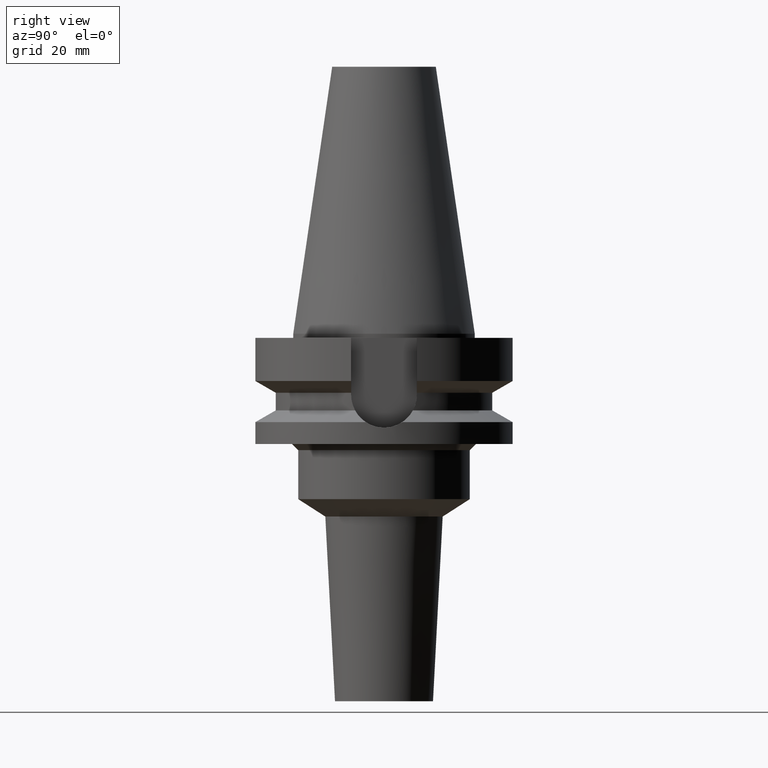
[diagram: clean part render]
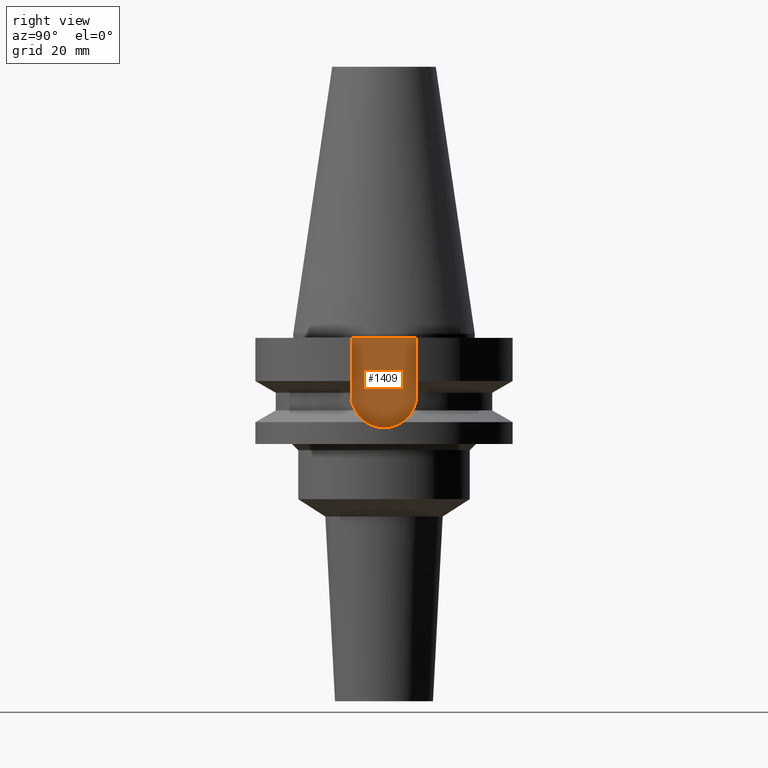
[diagram: same view with one face highlighted and labeled with its STEP entity id]
A machine part, right view. The second image highlights one B-rep face of the part: STEP entity #1409.
In plain terms, the highlighted planar face has unit normal (1, 0, 0).
Its self-contained STEP definition (entity closure, byte-faithful):
#124=DIRECTION('',(0.E0,-1.E0,0.E0));
#125=VECTOR('',#124,1.61E1);
#126=CARTESIAN_POINT('',(2.25E1,8.05E0,-1.E0));
#127=LINE('',#126,#125);
#307=DIRECTION('',(0.E0,0.E0,-1.E0));
#308=VECTOR('',#307,1.395E1);
#309=CARTESIAN_POINT('',(2.25E1,8.05E0,-1.E0));
#310=LINE('',#309,#308);
#314=CARTESIAN_POINT('',(2.25E1,0.E0,-1.495E1));
#315=DIRECTION('',(-1.E0,0.E0,0.E0));
#316=DIRECTION('',(0.E0,1.E0,0.E0));
#317=AXIS2_PLACEMENT_3D('',#314,#315,#316);
#322=CARTESIAN_POINT('',(2.25E1,0.E0,-1.495E1));
#323=DIRECTION('',(-1.E0,0.E0,0.E0));
#324=DIRECTION('',(0.E0,0.E0,-1.E0));
#325=AXIS2_PLACEMENT_3D('',#322,#323,#324);
#330=DIRECTION('',(0.E0,0.E0,1.E0));
#331=VECTOR('',#330,1.395E1);
#332=CARTESIAN_POINT('',(2.25E1,-8.05E0,-1.495E1));
#333=LINE('',#332,#331);
#1106=CARTESIAN_POINT('',(2.25E1,-8.05E0,-1.495E1));
#1107=VERTEX_POINT('',#1106);
#1108=CARTESIAN_POINT('',(2.25E1,0.E0,-2.3E1));
#1109=VERTEX_POINT('',#1108);
#1110=CARTESIAN_POINT('',(2.25E1,8.05E0,-1.495E1));
#1111=VERTEX_POINT('',#1110);
#1158=CARTESIAN_POINT('',(2.25E1,8.05E0,-1.E0));
#1159=VERTEX_POINT('',#1158);
#1160=CARTESIAN_POINT('',(2.25E1,-8.05E0,-1.E0));
#1161=VERTEX_POINT('',#1160);
#1394=CARTESIAN_POINT('',(2.25E1,0.E0,0.E0));
#1395=DIRECTION('',(1.E0,0.E0,0.E0));
#1396=DIRECTION('',(0.E0,0.E0,-1.E0));
#1397=AXIS2_PLACEMENT_3D('',#1394,#1395,#1396);
#1398=PLANE('',#1397);
#1399=ORIENTED_EDGE('',*,*,#1271,.F.);
#1401=ORIENTED_EDGE('',*,*,#1400,.T.);
#1403=ORIENTED_EDGE('',*,*,#1402,.T.);
#1405=ORIENTED_EDGE('',*,*,#1404,.T.);
#1406=ORIENTED_EDGE('',*,*,#1387,.T.);
#1407=EDGE_LOOP('',(#1399,#1401,#1403,#1405,#1406));
#1408=FACE_OUTER_BOUND('',#1407,.F.);
#318=CIRCLE('',#317,8.05E0);
#326=CIRCLE('',#325,8.05E0);
#1271=EDGE_CURVE('',#1159,#1161,#127,.T.);
#1387=EDGE_CURVE('',#1107,#1161,#333,.T.);
#1400=EDGE_CURVE('',#1159,#1111,#310,.T.);
#1402=EDGE_CURVE('',#1111,#1109,#318,.T.);
#1404=EDGE_CURVE('',#1109,#1107,#326,.T.);
#1409=ADVANCED_FACE('',(#1408),#1398,.T.);